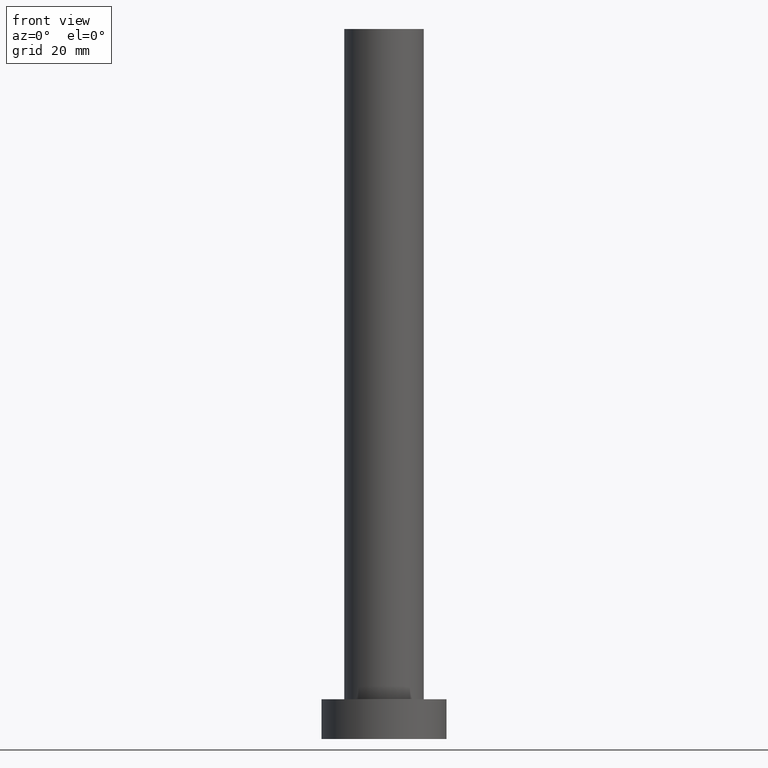
[diagram: clean part render]
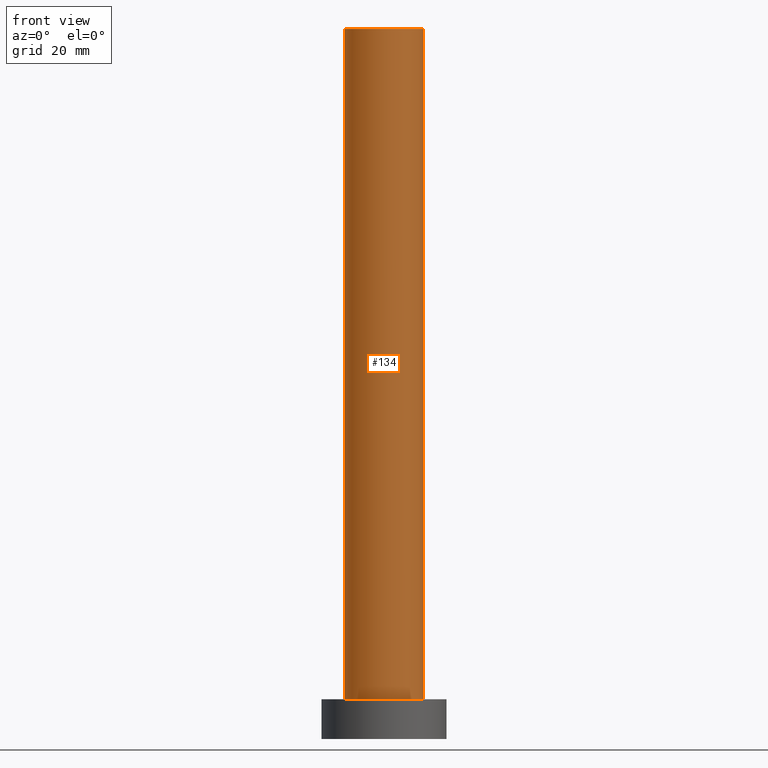
[diagram: same view with one face highlighted and labeled with its STEP entity id]
A machine part, front view. The second image highlights one B-rep face of the part: STEP entity #134.
In plain terms, the highlighted cylindrical surface (partial cylindrical patch) has radius 7 mm, axis along (-0, -0, -1).
Its self-contained STEP definition (entity closure, byte-faithful):
#7 = AXIS2_PLACEMENT_3D ( 'NONE', #230, #246, #52 ) ;
#12 = DIRECTION ( 'NONE',  ( -0.000000000000000000, -0.000000000000000000, -1.000000000000000000 ) ) ;
#13 = CARTESIAN_POINT ( 'NONE',  ( -7.000000000000000888, 0.000000000000000000, 7.000000000000000000 ) ) ;
#16 = LINE ( 'NONE', #70, #198 ) ;
#28 = AXIS2_PLACEMENT_3D ( 'NONE', #87, #189, #214 ) ;
#40 = EDGE_CURVE ( 'NONE', #120, #105, #238, .T. ) ;
#41 = CARTESIAN_POINT ( 'NONE',  ( 7.000000000000000888, 8.572527594031474176E-16, 125.0000000000000000 ) ) ;
#44 = CARTESIAN_POINT ( 'NONE',  ( -7.000000000000000888, 0.000000000000000000, 125.0000000000000000 ) ) ;
#47 = EDGE_CURVE ( 'NONE', #212, #120, #16, .T. ) ;
#50 = CYLINDRICAL_SURFACE ( 'NONE', #28, 7.000000000000000888 ) ;
#52 = DIRECTION ( 'NONE',  ( 1.000000000000000000, 0.000000000000000000, 0.000000000000000000 ) ) ;
#58 = ORIENTED_EDGE ( 'NONE', *, *, #47, .T. ) ;
#65 = FACE_OUTER_BOUND ( 'NONE', #80, .T. ) ;
#70 = CARTESIAN_POINT ( 'NONE',  ( -7.000000000000000888, 0.000000000000000000, 125.0000000000000000 ) ) ;
#76 = CIRCLE ( 'NONE', #7, 7.000000000000000888 ) ;
#77 = EDGE_CURVE ( 'NONE', #212, #84, #76, .T. ) ;
#80 = EDGE_LOOP ( 'NONE', ( #144, #207, #58, #126 ) ) ;
#84 = VERTEX_POINT ( 'NONE', #168 ) ;
#87 = CARTESIAN_POINT ( 'NONE',  ( 0.000000000000000000, 0.000000000000000000, 125.0000000000000000 ) ) ;
#105 = VERTEX_POINT ( 'NONE', #147 ) ;
#120 = VERTEX_POINT ( 'NONE', #13 ) ;
#124 = DIRECTION ( 'NONE',  ( 0.000000000000000000, 0.000000000000000000, 1.000000000000000000 ) ) ;
#126 = ORIENTED_EDGE ( 'NONE', *, *, #40, .T. ) ;
#134 = ADVANCED_FACE ( 'NONE', ( #65 ), #50, .T. ) ;
#144 = ORIENTED_EDGE ( 'NONE', *, *, #202, .F. ) ;
#147 = CARTESIAN_POINT ( 'NONE',  ( 7.000000000000000888, 8.572527594031474176E-16, 7.000000000000000000 ) ) ;
#160 = DIRECTION ( 'NONE',  ( -0.000000000000000000, -0.000000000000000000, -1.000000000000000000 ) ) ;
#163 = VECTOR ( 'NONE', #160, 1000.000000000000000 ) ;
#165 = CARTESIAN_POINT ( 'NONE',  ( 0.000000000000000000, 0.000000000000000000, 7.000000000000000000 ) ) ;
#167 = DIRECTION ( 'NONE',  ( 1.000000000000000000, 0.000000000000000000, 0.000000000000000000 ) ) ;
#168 = CARTESIAN_POINT ( 'NONE',  ( 7.000000000000000888, 8.572527594031474176E-16, 125.0000000000000000 ) ) ;
#189 = DIRECTION ( 'NONE',  ( -0.000000000000000000, -0.000000000000000000, -1.000000000000000000 ) ) ;
#198 = VECTOR ( 'NONE', #12, 1000.000000000000000 ) ;
#202 = EDGE_CURVE ( 'NONE', #84, #105, #237, .T. ) ;
#207 = ORIENTED_EDGE ( 'NONE', *, *, #77, .F. ) ;
#212 = VERTEX_POINT ( 'NONE', #44 ) ;
#214 = DIRECTION ( 'NONE',  ( -1.000000000000000000, 0.000000000000000000, 0.000000000000000000 ) ) ;
#230 = CARTESIAN_POINT ( 'NONE',  ( 0.000000000000000000, 0.000000000000000000, 125.0000000000000000 ) ) ;
#237 = LINE ( 'NONE', #41, #163 ) ;
#238 = CIRCLE ( 'NONE', #242, 7.000000000000000888 ) ;
#242 = AXIS2_PLACEMENT_3D ( 'NONE', #165, #124, #167 ) ;
#246 = DIRECTION ( 'NONE',  ( 0.000000000000000000, 0.000000000000000000, 1.000000000000000000 ) ) ;